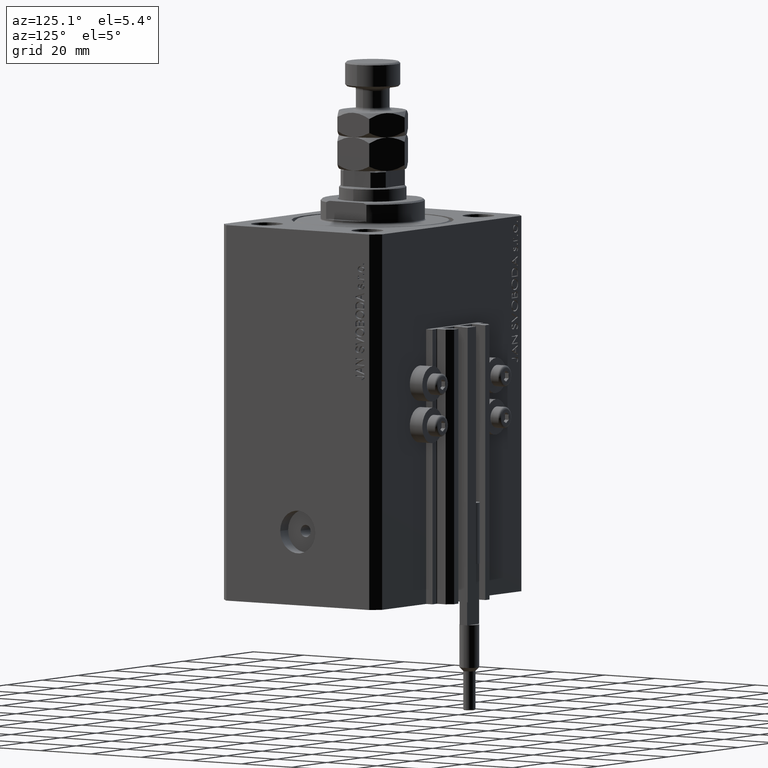
[diagram: clean part render]
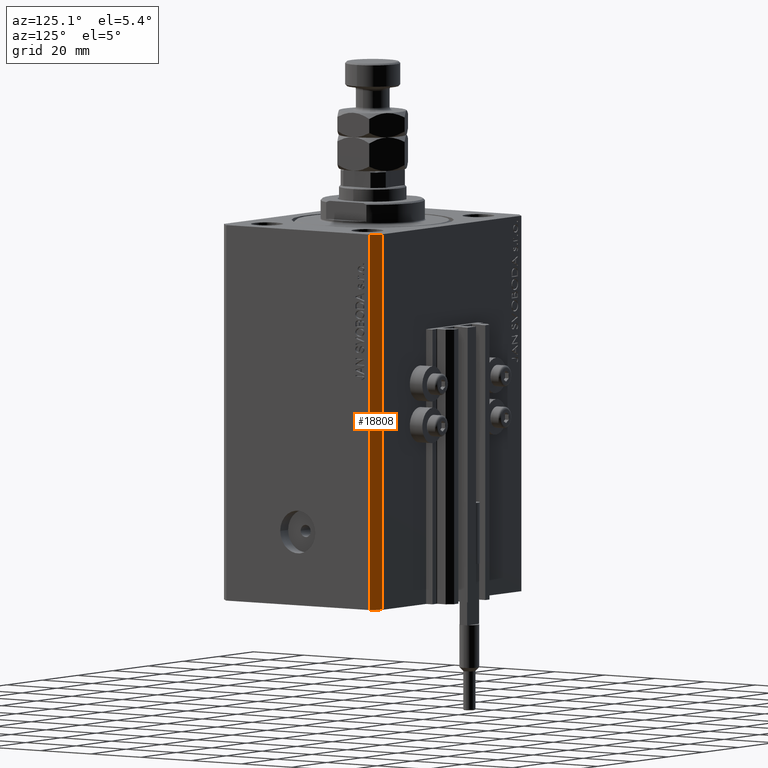
[diagram: same view with one face highlighted and labeled with its STEP entity id]
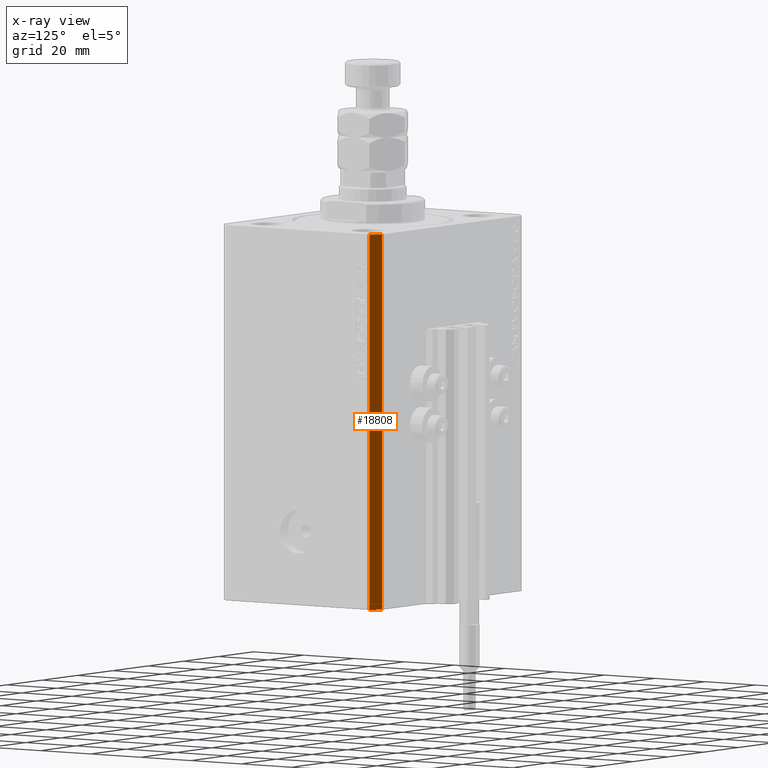
[diagram: x-ray of the same camera — body ghosted, the highlighted face saturated]
A machine part, auxiliary view. The second image highlights one B-rep face of the part: STEP entity #18808.
The next image is the same camera in x-ray: the body ghosted, the highlighted face saturated — about 0% of this face is hidden behind the body in this view.
In plain terms, the highlighted planar face has unit normal (0.7071, 0.7071, 0).
Its self-contained STEP definition (entity closure, byte-faithful):
#3473 = EDGE_CURVE ( 'NONE', #41511, #20499, #43474, .T. ) ;
#4780 = CARTESIAN_POINT ( 'NONE',  ( 39.50000000000056843, 31.50000000000000000, -123.0000000000000000 ) ) ;
#4986 = EDGE_LOOP ( 'NONE', ( #42891, #21718, #5841, #13926 ) ) ;
#5299 = EDGE_CURVE ( 'NONE', #41511, #33482, #10628, .T. ) ;
#5841 = ORIENTED_EDGE ( 'NONE', *, *, #5299, .T. ) ;
#6227 = CARTESIAN_POINT ( 'NONE',  ( 42.50000000000051870, 28.49999999999995381, 0.000000000000000000 ) ) ;
#9492 = CARTESIAN_POINT ( 'NONE',  ( 42.50000000000051870, 28.49999999999995381, -123.0000000000000000 ) ) ;
#10628 = LINE ( 'NONE', #41381, #48997 ) ;
#11440 = DIRECTION ( 'NONE',  ( 0.000000000000000000, 0.000000000000000000, 1.000000000000000000 ) ) ;
#11541 = DIRECTION ( 'NONE',  ( -0.7071067811865356934, 0.7071067811865594521, 0.000000000000000000 ) ) ;
#11631 = PLANE ( 'NONE',  #48072 ) ;
#12451 = VERTEX_POINT ( 'NONE', #29964 ) ;
#13926 = ORIENTED_EDGE ( 'NONE', *, *, #14922, .T. ) ;
#14922 = EDGE_CURVE ( 'NONE', #33482, #12451, #45965, .T. ) ;
#15925 = FACE_OUTER_BOUND ( 'NONE', #4986, .T. ) ;
#18808 = ADVANCED_FACE ( 'NONE', ( #15925 ), #11631, .T. ) ;
#19964 = DIRECTION ( 'NONE',  ( 0.7071067811865594521, 0.7071067811865355823, -0.000000000000000000 ) ) ;
#20499 = VERTEX_POINT ( 'NONE', #6227 ) ;
#21718 = ORIENTED_EDGE ( 'NONE', *, *, #3473, .F. ) ;
#28930 = VECTOR ( 'NONE', #47249, 1000.000000000000000 ) ;
#29947 = EDGE_CURVE ( 'NONE', #20499, #12451, #38507, .T. ) ;
#29964 = CARTESIAN_POINT ( 'NONE',  ( 39.50000000000056843, 31.50000000000000000, 0.000000000000000000 ) ) ;
#31048 = CARTESIAN_POINT ( 'NONE',  ( 42.50000000000051870, 28.49999999999995381, -123.0000000000000000 ) ) ;
#32230 = VECTOR ( 'NONE', #11541, 1000.000000000000114 ) ;
#33482 = VERTEX_POINT ( 'NONE', #4780 ) ;
#34478 = CARTESIAN_POINT ( 'NONE',  ( 42.50000000000051870, 28.49999999999995381, 0.000000000000000000 ) ) ;
#34566 = DIRECTION ( 'NONE',  ( -0.7071067811865356934, 0.7071067811865594521, 0.000000000000000000 ) ) ;
#35339 = DIRECTION ( 'NONE',  ( -0.7071067811865355823, 0.7071067811865594521, 0.000000000000000000 ) ) ;
#38507 = LINE ( 'NONE', #34478, #32230 ) ;
#39896 = VECTOR ( 'NONE', #11440, 1000.000000000000000 ) ;
#41381 = CARTESIAN_POINT ( 'NONE',  ( 42.50000000000051870, 28.49999999999995381, -123.0000000000000000 ) ) ;
#41511 = VERTEX_POINT ( 'NONE', #9492 ) ;
#42697 = CARTESIAN_POINT ( 'NONE',  ( 39.50000000000056843, 31.50000000000000000, -123.0000000000000000 ) ) ;
#42891 = ORIENTED_EDGE ( 'NONE', *, *, #29947, .F. ) ;
#43474 = LINE ( 'NONE', #43956, #28930 ) ;
#43956 = CARTESIAN_POINT ( 'NONE',  ( 42.50000000000051870, 28.49999999999995381, -123.0000000000000000 ) ) ;
#45965 = LINE ( 'NONE', #42697, #39896 ) ;
#47249 = DIRECTION ( 'NONE',  ( 0.000000000000000000, 0.000000000000000000, 1.000000000000000000 ) ) ;
#48072 = AXIS2_PLACEMENT_3D ( 'NONE', #31048, #19964, #35339 ) ;
#48997 = VECTOR ( 'NONE', #34566, 1000.000000000000114 ) ;